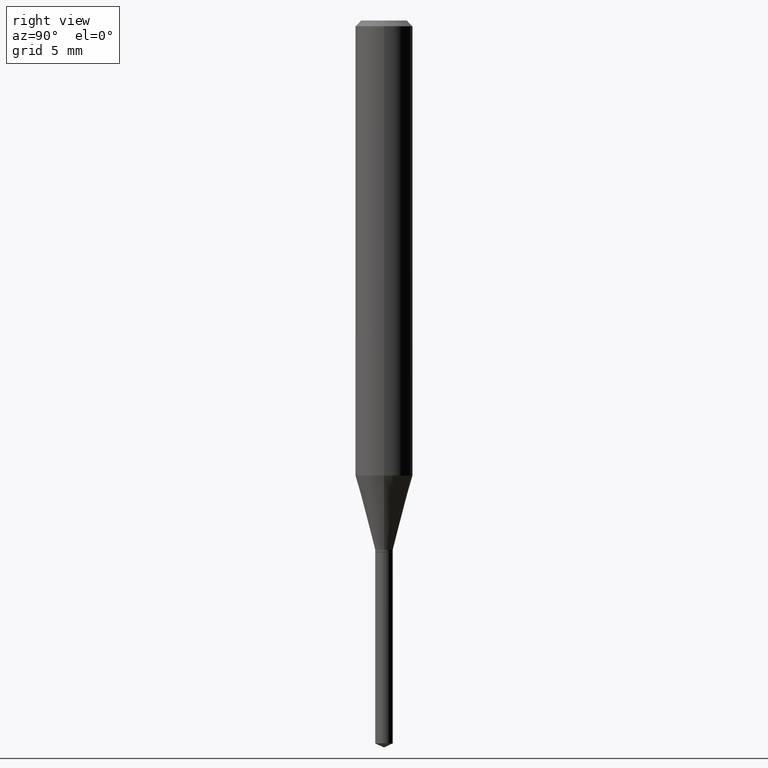
[diagram: clean part render]
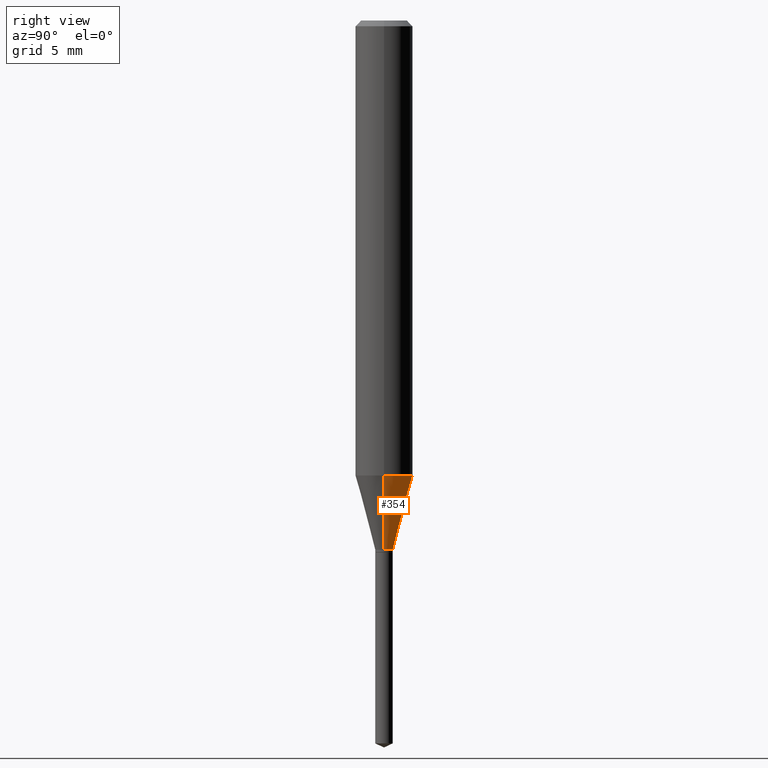
[diagram: same view with one face highlighted and labeled with its STEP entity id]
A machine part, right view. The second image highlights one B-rep face of the part: STEP entity #354.
In plain terms, the highlighted conical surface has half-angle 15 deg.
Its self-contained STEP definition (entity closure, byte-faithful):
#15 = VERTEX_POINT ( 'NONE', #80 ) ;
#16 = DIRECTION ( 'NONE',  ( -2.445468806185136597E-29, 3.491481338843145583E-15, 1.000000000000000000 ) ) ;
#18 = VECTOR ( 'NONE', #138, 39.37007874015748854 ) ;
#19 = ORIENTED_EDGE ( 'NONE', *, *, #432, .T. ) ;
#23 = CARTESIAN_POINT ( 'NONE',  ( -0.01810000000000000150, -3.673964090961491577E-15, -1.089099999999999957 ) ) ;
#27 = CARTESIAN_POINT ( 'NONE',  ( 0.01810000000000000150, -3.928963950600190549E-15, -1.089099999999999957 ) ) ;
#33 = CONICAL_SURFACE ( 'NONE', #300, 0.01810000000000000150, 0.2617993877991498519 ) ;
#50 = FACE_OUTER_BOUND ( 'NONE', #64, .T. ) ;
#54 = DIRECTION ( 'NONE',  ( 1.000000000000000000, -6.982962677686262766E-15, 0.000000000000000000 ) ) ;
#64 = EDGE_LOOP ( 'NONE', ( #19, #201, #343, #167 ) ) ;
#66 = VERTEX_POINT ( 'NONE', #322 ) ;
#80 = CARTESIAN_POINT ( 'NONE',  ( 0.01810000000000000150, -3.928963950600190549E-15, -1.089099999999999957 ) ) ;
#121 = EDGE_CURVE ( 'NONE', #434, #265, #411, .T. ) ;
#138 = DIRECTION ( 'NONE',  ( -0.2588190451025211281, 5.211531920934547886E-15, 0.9659258262890679791 ) ) ;
#139 = EDGE_CURVE ( 'NONE', #66, #265, #144, .T. ) ;
#141 = VECTOR ( 'NONE', #357, 39.37007874015748854 ) ;
#144 = LINE ( 'NONE', #23, #18 ) ;
#159 = CARTESIAN_POINT ( 'NONE',  ( -0.05905000000000011628, -2.849402544195350882E-15, -0.9362725194300541842 ) ) ;
#167 = ORIENTED_EDGE ( 'NONE', *, *, #206, .F. ) ;
#170 = DIRECTION ( 'NONE',  ( 1.000000000000000000, -6.982962677686266711E-15, 0.000000000000000000 ) ) ;
#189 = CIRCLE ( 'NONE', #464, 0.01810000000000000150 ) ;
#201 = ORIENTED_EDGE ( 'NONE', *, *, #139, .T. ) ;
#206 = EDGE_CURVE ( 'NONE', #15, #434, #278, .T. ) ;
#209 = AXIS2_PLACEMENT_3D ( 'NONE', #482, #470, #170 ) ;
#211 = DIRECTION ( 'NONE',  ( 1.000000000000000000, -6.982962677686262766E-15, 0.000000000000000000 ) ) ;
#220 = DIRECTION ( 'NONE',  ( -2.445468806185136597E-29, 3.491481338843145583E-15, 1.000000000000000000 ) ) ;
#239 = CARTESIAN_POINT ( 'NONE',  ( 2.663360076816232005E-29, -3.802572326134069746E-15, -1.089099999999999957 ) ) ;
#254 = CARTESIAN_POINT ( 'NONE',  ( 2.663360076816232005E-29, -3.802572326134069746E-15, -1.089099999999999957 ) ) ;
#265 = VERTEX_POINT ( 'NONE', #159 ) ;
#278 = LINE ( 'NONE', #27, #141 ) ;
#300 = AXIS2_PLACEMENT_3D ( 'NONE', #239, #16, #54 ) ;
#313 = CARTESIAN_POINT ( 'NONE',  ( 0.05905000000000011628, -3.681321975779065690E-15, -0.9362725194300541842 ) ) ;
#322 = CARTESIAN_POINT ( 'NONE',  ( -0.01810000000000000150, -3.682518220241656550E-15, -1.089099999999999957 ) ) ;
#343 = ORIENTED_EDGE ( 'NONE', *, *, #121, .F. ) ;
#354 = ADVANCED_FACE ( 'NONE', ( #50 ), #33, .T. ) ;
#357 = DIRECTION ( 'NONE',  ( 0.2588190451025211281, 1.565188264969622954E-15, 0.9659258262890679791 ) ) ;
#411 = CIRCLE ( 'NONE', #209, 0.05905000000000011628 ) ;
#432 = EDGE_CURVE ( 'NONE', #15, #66, #189, .T. ) ;
#434 = VERTEX_POINT ( 'NONE', #313 ) ;
#464 = AXIS2_PLACEMENT_3D ( 'NONE', #254, #220, #211 ) ;
#470 = DIRECTION ( 'NONE',  ( -2.445468806185136597E-29, 3.491481338843145583E-15, 1.000000000000000000 ) ) ;
#482 = CARTESIAN_POINT ( 'NONE',  ( 2.289625240354564916E-29, -3.268978029661690375E-15, -0.9362725194300541842 ) ) ;